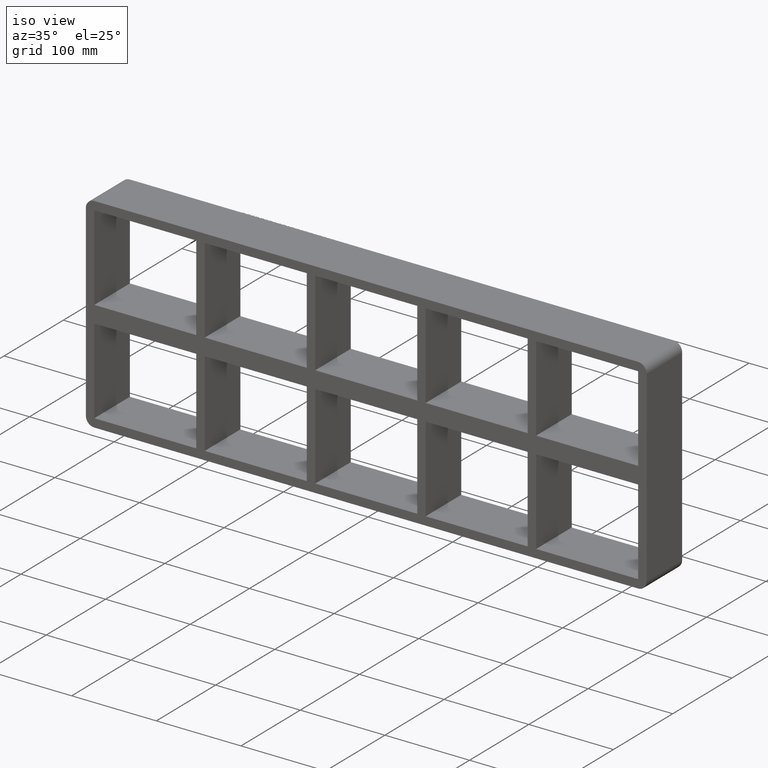
[diagram: clean part render]
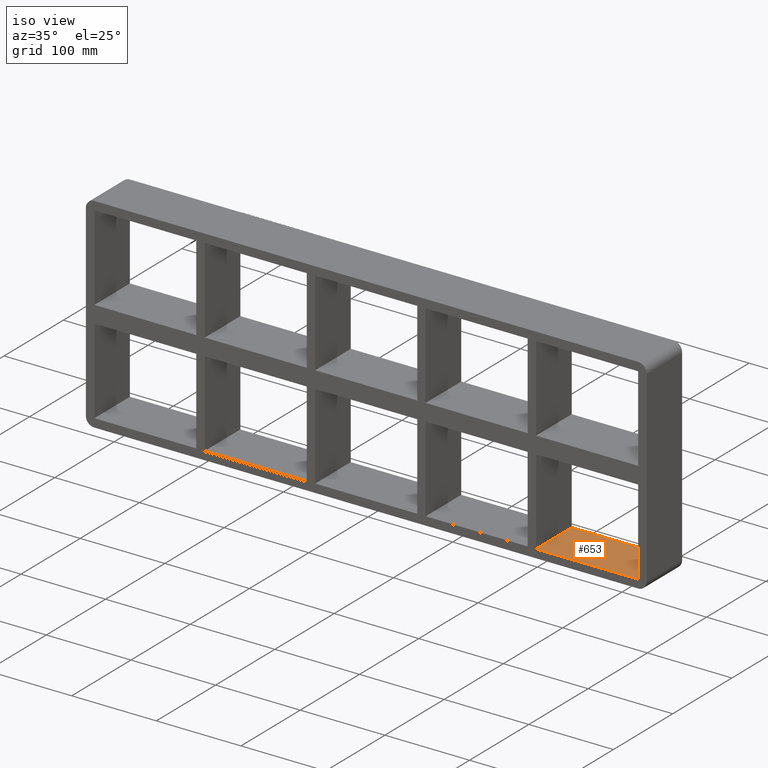
[diagram: same view with one face highlighted and labeled with its STEP entity id]
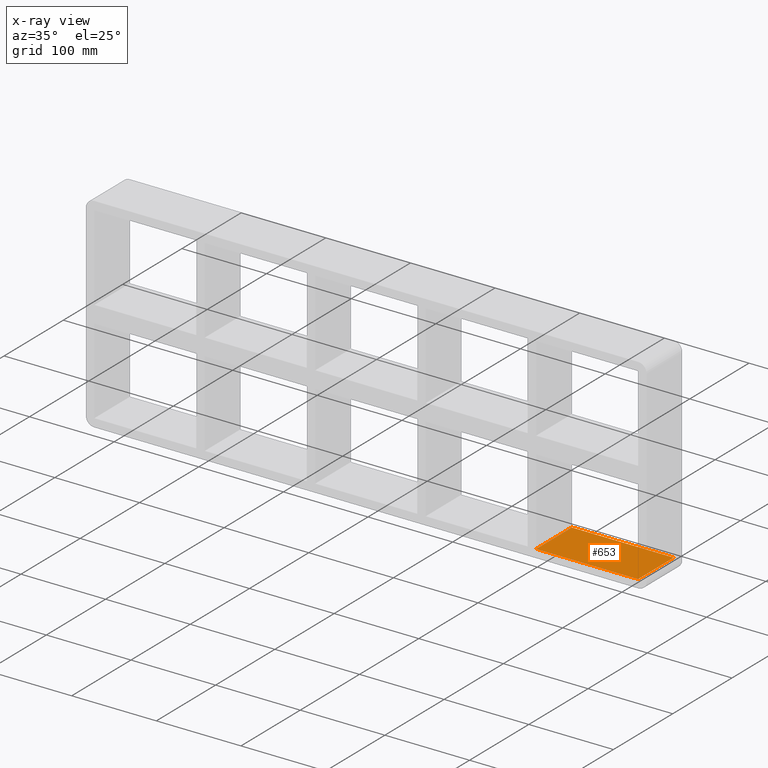
[diagram: x-ray of the same camera — body ghosted, the highlighted face saturated]
A machine part, iso view. The second image highlights one B-rep face of the part: STEP entity #653.
The next image is the same camera in x-ray: the body ghosted, the highlighted face saturated — about 0% of this face is hidden behind the body in this view.
In plain terms, the highlighted planar face has unit normal (0, 0, -1).
Its self-contained STEP definition (entity closure, byte-faithful):
#203=CARTESIAN_POINT('',(200.74999999999278,-3.0,-110.99999999998417));
#204=VERTEX_POINT('',#203);
#211=CARTESIAN_POINT('',(200.74999999999278,57.0,-110.99999999998417));
#212=VERTEX_POINT('',#211);
#213=CARTESIAN_POINT('',(200.74999999999278,57.000000000000007,-111.00000000000001));
#214=DIRECTION('',(0.0,-1.0,0.0));
#215=VECTOR('',#214,60.000000000000007);
#216=LINE('',#213,#215);
#217=EDGE_CURVE('',#212,#204,#216,.T.);
#623=CARTESIAN_POINT('',(321.25,0.0,-111.00000000000001));
#624=DIRECTION('',(0.0,0.0,-1.0));
#625=DIRECTION('',(-1.0,0.0,0.0));
#626=AXIS2_PLACEMENT_3D('',#623,#624,#625);
#627=PLANE('',#626);
#628=ORIENTED_EDGE('',*,*,#217,.T.);
#629=CARTESIAN_POINT('',(321.25,-3.0,-111.00000000000001));
#630=VERTEX_POINT('',#629);
#631=CARTESIAN_POINT('',(321.25,-3.0,-111.00000000000001));
#632=DIRECTION('',(-1.0,0.0,0.0));
#633=VECTOR('',#632,120.50000000000722);
#634=LINE('',#631,#633);
#635=EDGE_CURVE('',#630,#204,#634,.T.);
#636=ORIENTED_EDGE('',*,*,#635,.F.);
#637=CARTESIAN_POINT('',(321.25,57.0,-111.00000000000001));
#638=VERTEX_POINT('',#637);
#639=CARTESIAN_POINT('',(321.25,57.0,-111.00000000000001));
#640=DIRECTION('',(0.0,-1.0,0.0));
#641=VECTOR('',#640,60.0);
#642=LINE('',#639,#641);
#643=EDGE_CURVE('',#638,#630,#642,.T.);
#644=ORIENTED_EDGE('',*,*,#643,.F.);
#645=CARTESIAN_POINT('',(200.74999999999278,57.0,-111.00000000000001));
#646=DIRECTION('',(1.0,0.0,0.0));
#647=VECTOR('',#646,120.50000000000722);
#648=LINE('',#645,#647);
#649=EDGE_CURVE('',#212,#638,#648,.T.);
#650=ORIENTED_EDGE('',*,*,#649,.F.);
#651=EDGE_LOOP('',(#628,#636,#644,#650));
#652=FACE_OUTER_BOUND('',#651,.T.);
#653=ADVANCED_FACE('',(#652),#627,.F.);